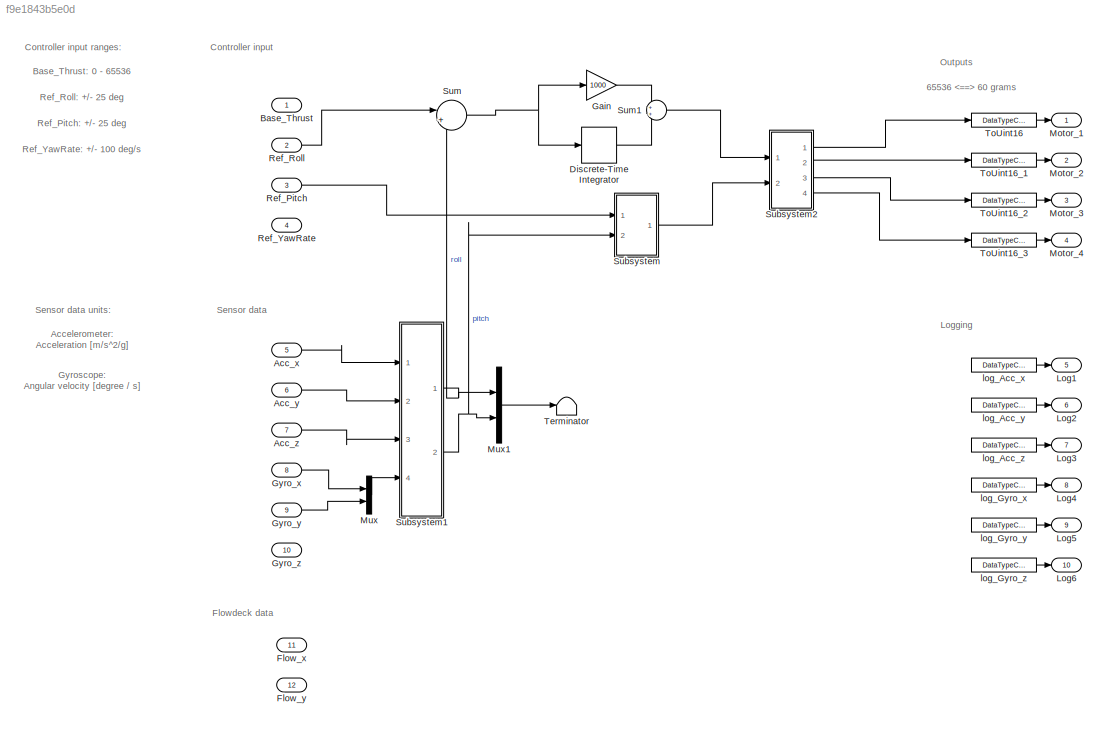
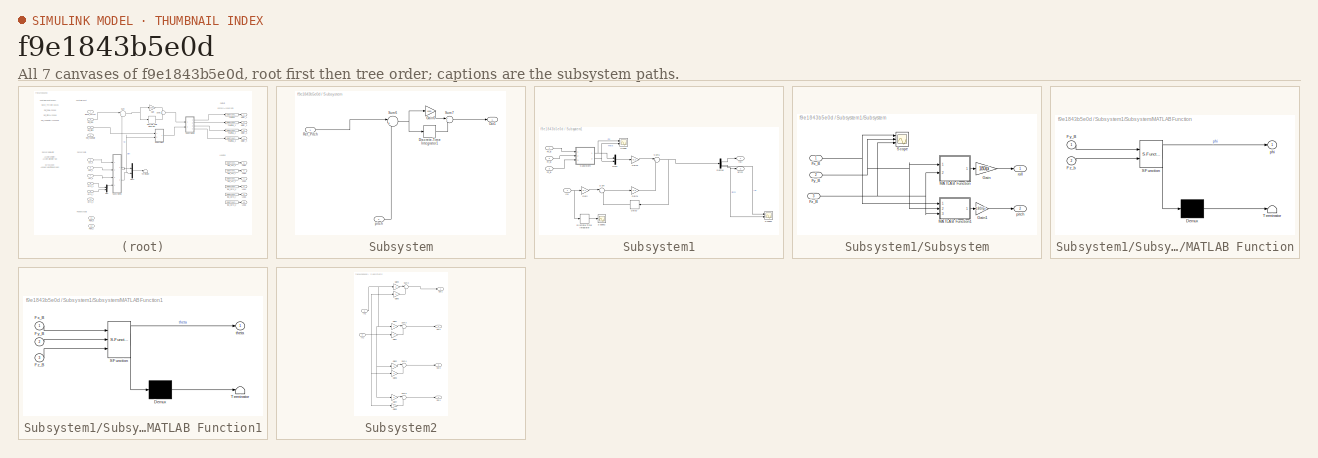
[diagram: thumbnail index - all 7 canvases of the model, root first then tree order]
MODEL slx_f9e1843b5e0d
KIND model
CONFIG AbsTol = auto
CONFIG EnableMultiTasking = off
CONFIG FixedStep = 0.01
CONFIG MaxStep = auto
CONFIG MinStep = auto
CONFIG RelTol = 1e-3
CONFIG SampleTimeConstraint = Unconstrained
CONFIG SolverName = FixedStepDiscrete
CONFIG StartTime = 0.0
CONFIG StopTime = 25
BLOCK [Inport] Acc_x
  OutDataTypeStr = double
  Port = 5
  PortDimensions = 1
  SignalType = real
  VarSizeSig = No
BLOCK [Inport] Acc_y
  OutDataTypeStr = double
  Port = 6
  PortDimensions = 1
  SignalType = real
  VarSizeSig = No
BLOCK [Inport] Acc_z
  OutDataTypeStr = double
  Port = 7
  PortDimensions = 1
  SignalType = real
  VarSizeSig = No
BLOCK [Inport] Base_Thrust
  OutDataTypeStr = double
  SignalType = real
BLOCK [DiscreteIntegrator] Discrete-Time Integrator
  ICPrevOutput = DiscIntNeverNeededParam
  ICPrevScaledInput = DiscIntNeverNeededParam
  InitialConditionSetting = Auto
  Ports = [1, 1]
  SampleTime = -1
BLOCK [Inport] Flow_x
  OutDataTypeStr = int16
  Port = 11
  PortDimensions = 1
  SignalType = real
  VarSizeSig = No
BLOCK [Inport] Flow_y
  OutDataTypeStr = int16
  Port = 12
  PortDimensions = 1
  SignalType = real
  VarSizeSig = No
BLOCK [Gain] Gain
  Gain = 1000
BLOCK [Inport] Gyro_x
  OutDataTypeStr = double
  Port = 8
  PortDimensions = 1
  SignalType = real
  VarSizeSig = No
BLOCK [Inport] Gyro_y
  OutDataTypeStr = double
  Port = 9
  PortDimensions = 1
  SignalType = real
  VarSizeSig = No
BLOCK [Inport] Gyro_z
  OutDataTypeStr = double
  Port = 10
  PortDimensions = 1
  SignalType = real
  VarSizeSig = No
BLOCK [Outport] Log1
  OutDataTypeStr = double
  Port = 5
  VectorParamsAs1DForOutWhenUnconnected = off
BLOCK [Outport] Log2
  OutDataTypeStr = double
  Port = 6
  VectorParamsAs1DForOutWhenUnconnected = off
BLOCK [Outport] Log3
  OutDataTypeStr = double
  Port = 7
  VectorParamsAs1DForOutWhenUnconnected = off
BLOCK [Outport] Log4
  OutDataTypeStr = double
  Port = 8
  VectorParamsAs1DForOutWhenUnconnected = off
BLOCK [Outport] Log5
  OutDataTypeStr = double
  Port = 9
  VectorParamsAs1DForOutWhenUnconnected = off
BLOCK [Outport] Log6
  OutDataTypeStr = double
  Port = 10
  VectorParamsAs1DForOutWhenUnconnected = off
BLOCK [Outport] Motor_1
  LockScale = on
  OutDataTypeStr = uint16
  VectorParamsAs1DForOutWhenUnconnected = off
BLOCK [Outport] Motor_2
  LockScale = on
  OutDataTypeStr = uint16
  Port = 2
  VectorParamsAs1DForOutWhenUnconnected = off
BLOCK [Outport] Motor_3
  LockScale = on
  OutDataTypeStr = uint16
  Port = 3
  VectorParamsAs1DForOutWhenUnconnected = off
BLOCK [Outport] Motor_4
  LockScale = on
  OutDataTypeStr = uint16
  Port = 4
  VectorParamsAs1DForOutWhenUnconnected = off
BLOCK [Mux] Mux
  DisplayOption = bar
  Inputs = 2
  Ports = [2, 1]
BLOCK [Mux] Mux1
  DisplayOption = bar
  Inputs = 2
  Ports = [2, 1]
BLOCK [Inport] Ref_Pitch
  OutDataTypeStr = double
  Port = 3
BLOCK [Inport] Ref_Roll
  OutDataTypeStr = double
  Port = 2
BLOCK [Inport] Ref_YawRate
  OutDataTypeStr = double
  Port = 4
BLOCK [SubSystem] Subsystem
  Ports = [2, 1]
  RequestExecContextInheritance = off
BLOCK [DiscreteIntegrator] Subsystem/Discrete-Time Integrator1
  ICPrevOutput = DiscIntNeverNeededParam
  ICPrevScaledInput = DiscIntNeverNeededParam
  InitialConditionSetting = Auto
  Ports = [1, 1]
  SampleTime = -1
BLOCK [Gain] Subsystem/Gain6
  Gain = 1000
BLOCK [Outport] Subsystem/Out1
BLOCK [Inport] Subsystem/Ref_Pitch
BLOCK [Sum] Subsystem/Sum6
  Inputs = |+-
  Ports = [2, 1]
BLOCK [Sum] Subsystem/Sum7
  Ports = [2, 1]
BLOCK [Inport] Subsystem/pitch
  Port = 2
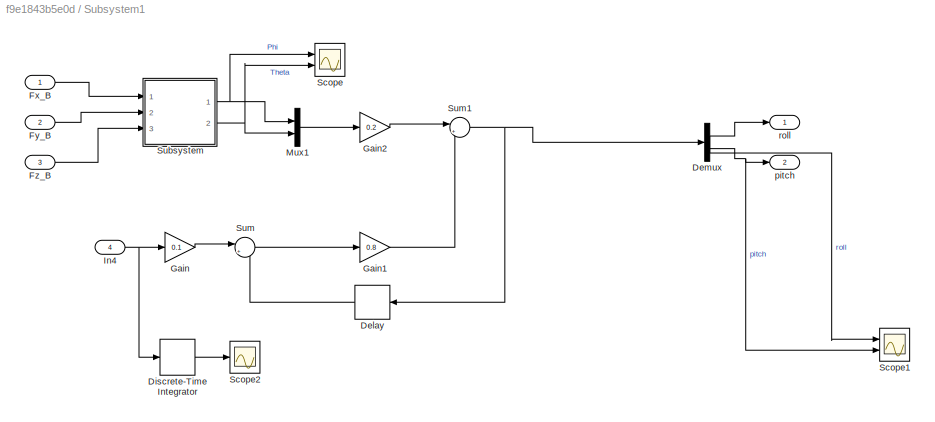
BLOCK [SubSystem] Subsystem1
  Ports = [4, 2]
  RequestExecContextInheritance = off
BLOCK [Delay] Subsystem1/Delay
  DelayLength = 1
  InputPortMap = u0
  NameLocation = top
  Ports = [1, 1]
BLOCK [Demux] Subsystem1/Demux
  Outputs = 2
  Ports = [1, 2]
BLOCK [DiscreteIntegrator] Subsystem1/Discrete-Time Integrator
  ICPrevOutput = DiscIntNeverNeededParam
  ICPrevScaledInput = DiscIntNeverNeededParam
  InitialConditionSetting = Auto
  Ports = [1, 1]
  SampleTime = -1
BLOCK [Inport] Subsystem1/Fx_B
BLOCK [Inport] Subsystem1/Fy_B
  Port = 2
BLOCK [Inport] Subsystem1/Fz_B
  Port = 3
BLOCK [Gain] Subsystem1/Gain
  Gain = 0.1
BLOCK [Gain] Subsystem1/Gain1
  Gain = 0.8
BLOCK [Gain] Subsystem1/Gain2
  Gain = 0.2
BLOCK [Inport] Subsystem1/In4
  Port = 4
BLOCK [Mux] Subsystem1/Mux1
  DisplayOption = bar
  Inputs = 2
  Ports = [2, 1]
BLOCK [Scope] Subsystem1/Scope
  Floating = off
  NumInputPorts = 2
  Ports = [2]
  ScopeSpecificationString = Simulink.scopes.TimeScopeBlockCfg('CurrentConfiguration', extmgr.ConfigurationSet(extmgr.Configuration('Core','General UI',true),extmgr.Configuration('Core','Source UI',true),extmgr.Configuration('Sources','WiredSimulink',true,'DataLoggingVariableName','ScopeData1'),extmgr.Configuration('Visuals','Time Domain',true,'SerializedDisplays',{struct('MinYLimReal','-48.51827','MaxYLimReal','61.34844','YL...<+1448ch>
BLOCK [Scope] Subsystem1/Scope1
  Floating = off
  NumInputPorts = 2
  Ports = [2]
  ScopeSpecificationString = Simulink.scopes.TimeScopeBlockCfg('CurrentConfiguration', extmgr.ConfigurationSet(extmgr.Configuration('Core','General UI',true),extmgr.Configuration('Core','Source UI',true),extmgr.Configuration('Sources','WiredSimulink',true),extmgr.Configuration('Visuals','Time Domain',true,'SerializedDisplays',{struct('MinYLimReal','-71.21848','MaxYLimReal','83.7637','YLabelReal','','MinYLimMag','0.00000','Max...<+1420ch>
BLOCK [Scope] Subsystem1/Scope2
  Floating = off
  NumInputPorts = 1
  Ports = [1]
  ScopeSpecificationString = Simulink.scopes.TimeScopeBlockCfg('CurrentConfiguration', extmgr.ConfigurationSet(extmgr.Configuration('Core','General UI',true),extmgr.Configuration('Core','Source UI',true),extmgr.Configuration('Sources','WiredSimulink',true,'DataLoggingVariableName','ScopeData3'),extmgr.Configuration('Visuals','Time Domain',true,'SerializedDisplays',{struct('MinYLimReal','-56.96807','MaxYLimReal','60.38594','YL...<+1472ch>
BLOCK [SubSystem] Subsystem1/Subsystem
  Ports = [3, 2]
  RequestExecContextInheritance = off
BLOCK [Inport] Subsystem1/Subsystem/Fx_B
BLOCK [Inport] Subsystem1/Subsystem/Fy_B
  Port = 2
BLOCK [Inport] Subsystem1/Subsystem/Fz_B
  Port = 3
BLOCK [Gain] Subsystem1/Subsystem/Gain
  Gain = 180/pi
BLOCK [Gain] Subsystem1/Subsystem/Gain1
  Gain = 180/pi
BLOCK [SubSystem] Subsystem1/Subsystem/MATLAB Function
  ErrorFcn = Stateflow.Translate.translate
  PermitHierarchicalResolution = ExplicitOnly
  Ports = [2, 1]
  RequestExecContextInheritance = off
  SFBlockType = MATLAB Function
  TreatAsAtomicUnit = on
BLOCK [Demux] Subsystem1/Subsystem/MATLAB Function/ Demux 
  Outputs = 1
  Ports = [1, 1]
BLOCK [S-Function] Subsystem1/Subsystem/MATLAB Function/ SFunction 
  EnableBusSupport = on
  FunctionName = sf_sfun
  PortCounts = [2 2]
  Ports = [2, 2]
  SFcnIsStateOwnerBlock = off
  SFunctionDeploymentMode = off
  Tag = Stateflow S-Function 2
BLOCK [Terminator] Subsystem1/Subsystem/MATLAB Function/ Terminator 
BLOCK [Inport] Subsystem1/Subsystem/MATLAB Function/Fy_B
BLOCK [Inport] Subsystem1/Subsystem/MATLAB Function/Fz_b
  Port = 2
BLOCK [Outport] Subsystem1/Subsystem/MATLAB Function/phi
BLOCK [SubSystem] Subsystem1/Subsystem/MATLAB Function1
  ErrorFcn = Stateflow.Translate.translate
  PermitHierarchicalResolution = ExplicitOnly
  Ports = [3, 1]
  RequestExecContextInheritance = off
  SFBlockType = MATLAB Function
  TreatAsAtomicUnit = on
BLOCK [Demux] Subsystem1/Subsystem/MATLAB Function1/ Demux 
  Outputs = 1
  Ports = [1, 1]
BLOCK [S-Function] Subsystem1/Subsystem/MATLAB Function1/ SFunction 
  EnableBusSupport = on
  FunctionName = sf_sfun
  PortCounts = [3 2]
  Ports = [3, 2]
  SFcnIsStateOwnerBlock = off
  SFunctionDeploymentMode = off
  Tag = Stateflow S-Function 1
BLOCK [Terminator] Subsystem1/Subsystem/MATLAB Function1/ Terminator 
BLOCK [Inport] Subsystem1/Subsystem/MATLAB Function1/Fx_B
BLOCK [Inport] Subsystem1/Subsystem/MATLAB Function1/Fy_B
  Port = 2
BLOCK [Inport] Subsystem1/Subsystem/MATLAB Function1/Fz_B
  Port = 3
BLOCK [Outport] Subsystem1/Subsystem/MATLAB Function1/theta
BLOCK [Scope] Subsystem1/Subsystem/Scope
  Floating = off
  NumInputPorts = 3
  Ports = [3]
  ScopeSpecificationString = Simulink.scopes.TimeScopeBlockCfg('CurrentConfiguration', extmgr.ConfigurationSet(extmgr.Configuration('Core','General UI',true),extmgr.Configuration('Core','Source UI',true),extmgr.Configuration('Sources','WiredSimulink',true,'DataLoggingVariableName','ScopeData2'),extmgr.Configuration('Visuals','Time Domain',true,'SerializedDisplays',{struct('MinYLimReal','-0.98026','MaxYLimReal','1.30065','YLab...<+1427ch>
BLOCK [Outport] Subsystem1/Subsystem/pitch
  Port = 2
BLOCK [Outport] Subsystem1/Subsystem/roll
BLOCK [Sum] Subsystem1/Sum
  Inputs = |++
  Ports = [2, 1]
BLOCK [Sum] Subsystem1/Sum1
  Inputs = |++
  Ports = [2, 1]
BLOCK [Outport] Subsystem1/pitch
  Port = 2
BLOCK [Outport] Subsystem1/roll
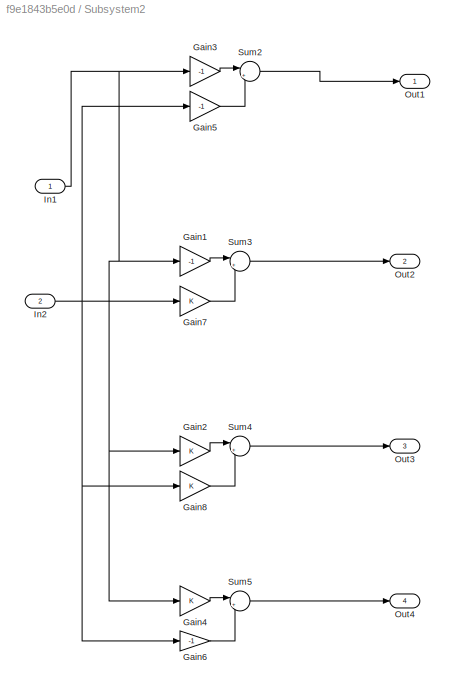
BLOCK [SubSystem] Subsystem2
  Ports = [2, 4]
  RequestExecContextInheritance = off
BLOCK [Gain] Subsystem2/Gain1
  Gain = -1
BLOCK [Gain] Subsystem2/Gain2
BLOCK [Gain] Subsystem2/Gain3
  Gain = -1
BLOCK [Gain] Subsystem2/Gain4
BLOCK [Gain] Subsystem2/Gain5
  Gain = -1
BLOCK [Gain] Subsystem2/Gain6
  Gain = -1
BLOCK [Gain] Subsystem2/Gain7
BLOCK [Gain] Subsystem2/Gain8
BLOCK [Inport] Subsystem2/In1
BLOCK [Inport] Subsystem2/In2
  Port = 2
BLOCK [Outport] Subsystem2/Out1
BLOCK [Outport] Subsystem2/Out2
  Port = 2
BLOCK [Outport] Subsystem2/Out3
  Port = 3
BLOCK [Outport] Subsystem2/Out4
  Port = 4
BLOCK [Sum] Subsystem2/Sum2
  Inputs = |++
  Ports = [2, 1]
BLOCK [Sum] Subsystem2/Sum3
  Inputs = |++
  Ports = [2, 1]
BLOCK [Sum] Subsystem2/Sum4
  Inputs = |++
  Ports = [2, 1]
BLOCK [Sum] Subsystem2/Sum5
  Inputs = |++
  Ports = [2, 1]
BLOCK [Sum] Sum
  Inputs = |+-
  Ports = [2, 1]
BLOCK [Sum] Sum1
  Ports = [2, 1]
BLOCK [Terminator] Terminator
BLOCK [DataTypeConversion] ToUint16
  OutDataTypeStr = uint16
  RndMeth = Floor
BLOCK [DataTypeConversion] ToUint16_1
  OutDataTypeStr = uint16
  RndMeth = Floor
BLOCK [DataTypeConversion] ToUint16_2
  OutDataTypeStr = uint16
  RndMeth = Floor
BLOCK [DataTypeConversion] ToUint16_3
  OutDataTypeStr = uint16
  RndMeth = Floor
BLOCK [DataTypeConversion] log_Acc_x
  OutDataTypeStr = double
  RndMeth = Floor
BLOCK [DataTypeConversion] log_Acc_y
  OutDataTypeStr = double
  RndMeth = Floor
BLOCK [DataTypeConversion] log_Acc_z
  OutDataTypeStr = double
  RndMeth = Floor
BLOCK [DataTypeConversion] log_Gyro_x
  OutDataTypeStr = double
  RndMeth = Floor
BLOCK [DataTypeConversion] log_Gyro_y
  OutDataTypeStr = double
  RndMeth = Floor
BLOCK [DataTypeConversion] log_Gyro_z
  OutDataTypeStr = double
  RndMeth = Floor
ANNOTATION (root): 65536 60 grams
ANNOTATION (root): Accelerometer: Acceleration [m/s^2/g]
ANNOTATION (root): Base_Thrust: 0 - 65536
ANNOTATION (root): Controller input
ANNOTATION (root): Controller input ranges:
ANNOTATION (root): Flowdeck data
ANNOTATION (root): Gyroscope: Angular velocity [degree / s]
ANNOTATION (root): Logging
ANNOTATION (root): Outputs
ANNOTATION (root): Ref_Pitch: +/- 25 deg
ANNOTATION (root): Ref_Roll: +/- 25 deg
ANNOTATION (root): Ref_YawRate: +/- 100 deg/s
ANNOTATION (root): Sensor data
ANNOTATION (root): Sensor data units:
LINE Acc_x:1 -> Subsystem1:1
LINE Acc_y:1 -> Subsystem1:2
LINE Acc_z:1 -> Subsystem1:3
LINE Discrete-Time Integrator:1 -> Sum1:2
LINE Gain:1 -> Sum1:1
LINE Gyro_x:1 -> Mux:1
LINE Gyro_y:1 -> Mux:2
LINE Mux1:1 -> Terminator:1
LINE Mux:1 -> Subsystem1:4
LINE Ref_Pitch:1 -> Subsystem:1
LINE Ref_Roll:1 -> Sum:1
LINE Subsystem/Discrete-Time Integrator1:1 -> Subsystem/Sum7:2
LINE Subsystem/Gain6:1 -> Subsystem/Sum7:1
LINE Subsystem/Ref_Pitch:1 -> Subsystem/Sum6:1
NET Subsystem/Sum6:1 -> Subsystem/Discrete-Time Integrator1:1, Subsystem/Gain6:1
LINE Subsystem/Sum7:1 -> Subsystem/Out1:1
LINE Subsystem/pitch:1 -> Subsystem/Sum6:2
LINE Subsystem1/Delay:1 -> Subsystem1/Sum:2
NET Subsystem1/Demux:1 -> Subsystem1/Scope1:1, Subsystem1/roll:1
NET Subsystem1/Demux:2 -> Subsystem1/Scope1:2, Subsystem1/pitch:1
LINE Subsystem1/Discrete-Time Integrator:1 -> Subsystem1/Scope2:1
LINE Subsystem1/Fx_B:1 -> Subsystem1/Subsystem:1
LINE Subsystem1/Fy_B:1 -> Subsystem1/Subsystem:2
LINE Subsystem1/Fz_B:1 -> Subsystem1/Subsystem:3
LINE Subsystem1/Gain1:1 -> Subsystem1/Sum1:2
LINE Subsystem1/Gain2:1 -> Subsystem1/Sum1:1
LINE Subsystem1/Gain:1 -> Subsystem1/Sum:1
NET Subsystem1/In4:1 -> Subsystem1/Discrete-Time Integrator:1, Subsystem1/Gain:1
LINE Subsystem1/Mux1:1 -> Subsystem1/Gain2:1
NET Subsystem1/Subsystem/Fx_B:1 -> Subsystem1/Subsystem/MATLAB Function1:1, Subsystem1/Subsystem/Scope:1
NET Subsystem1/Subsystem/Fy_B:1 -> Subsystem1/Subsystem/MATLAB Function1:2, Subsystem1/Subsystem/MATLAB Function:1, Subsystem1/Subsystem/Scope:2
NET Subsystem1/Subsystem/Fz_B:1 -> Subsystem1/Subsystem/MATLAB Function1:3, Subsystem1/Subsystem/MATLAB Function:2, Subsystem1/Subsystem/Scope:3
LINE Subsystem1/Subsystem/Gain1:1 -> Subsystem1/Subsystem/pitch:1
LINE Subsystem1/Subsystem/Gain:1 -> Subsystem1/Subsystem/roll:1
LINE Subsystem1/Subsystem/MATLAB Function1:1 -> Subsystem1/Subsystem/Gain1:1
LINE Subsystem1/Subsystem/MATLAB Function:1 -> Subsystem1/Subsystem/Gain:1
NET Subsystem1/Subsystem:1 -> Subsystem1/Mux1:1, Subsystem1/Scope:1
NET Subsystem1/Subsystem:2 -> Subsystem1/Mux1:2, Subsystem1/Scope:2
NET Subsystem1/Sum1:1 -> Subsystem1/Delay:1, Subsystem1/Demux:1
LINE Subsystem1/Sum:1 -> Subsystem1/Gain1:1
NET Subsystem1:1 -> Mux1:1, Sum:2
NET Subsystem1:2 -> Mux1:2, Subsystem:2
LINE Subsystem2/Gain1:1 -> Subsystem2/Sum3:1
LINE Subsystem2/Gain2:1 -> Subsystem2/Sum4:1
LINE Subsystem2/Gain3:1 -> Subsystem2/Sum2:1
LINE Subsystem2/Gain4:1 -> Subsystem2/Sum5:1
LINE Subsystem2/Gain5:1 -> Subsystem2/Sum2:2
LINE Subsystem2/Gain6:1 -> Subsystem2/Sum5:2
LINE Subsystem2/Gain7:1 -> Subsystem2/Sum3:2
LINE Subsystem2/Gain8:1 -> Subsystem2/Sum4:2
NET Subsystem2/In1:1 -> Subsystem2/Gain1:1, Subsystem2/Gain2:1, Subsystem2/Gain3:1, Subsystem2/Gain4:1
NET Subsystem2/In2:1 -> Subsystem2/Gain5:1, Subsystem2/Gain6:1, Subsystem2/Gain7:1, Subsystem2/Gain8:1
LINE Subsystem2/Sum2:1 -> Subsystem2/Out1:1
LINE Subsystem2/Sum3:1 -> Subsystem2/Out2:1
LINE Subsystem2/Sum4:1 -> Subsystem2/Out3:1
LINE Subsystem2/Sum5:1 -> Subsystem2/Out4:1
LINE Subsystem2:1 -> ToUint16:1
LINE Subsystem2:2 -> ToUint16_1:1
LINE Subsystem2:3 -> ToUint16_2:1
LINE Subsystem2:4 -> ToUint16_3:1
LINE Subsystem:1 -> Subsystem2:2
LINE Sum1:1 -> Subsystem2:1
NET Sum:1 -> Discrete-Time Integrator:1, Gain:1
LINE ToUint16:1 -> Motor_1:1
LINE ToUint16_1:1 -> Motor_2:1
LINE ToUint16_2:1 -> Motor_3:1
LINE ToUint16_3:1 -> Motor_4:1
LINE log_Acc_x:1 -> Log1:1
LINE log_Acc_y:1 -> Log2:1
LINE log_Acc_z:1 -> Log3:1
LINE log_Gyro_x:1 -> Log4:1
LINE log_Gyro_y:1 -> Log5:1
LINE log_Gyro_z:1 -> Log6:1
note: NET lines group one-source signal fan-out (src -> all destinations, sorted); 1:1 wires keep LINE
CHART Subsystem1/Subsystem/MATLAB Function states=1 transitions=1
  STATE_LABEL 'eML_blk_kernel()'
  STATE_LABEL 'SCRIPT:\nfunction phi = fcn(Fy_B,Fz_b)\n\nphi= atan2(Fy_B,Fz_b);\n'
CHART Subsystem1/Subsystem/MATLAB Function1 states=1 transitions=1
  STATE_LABEL 'eML_blk_kernel()'
  STATE_LABEL 'SCRIPT:\nfunction theta = fcn(Fx_B,Fy_B,Fz_B)\n% fx or -fx ????\ntheta = atan2(-Fx_B,sqrt((Fy_B)^2+(Fz_B)^2));\n'
CHART  states=0 transitions=0
CHART  states=0 transitions=0
